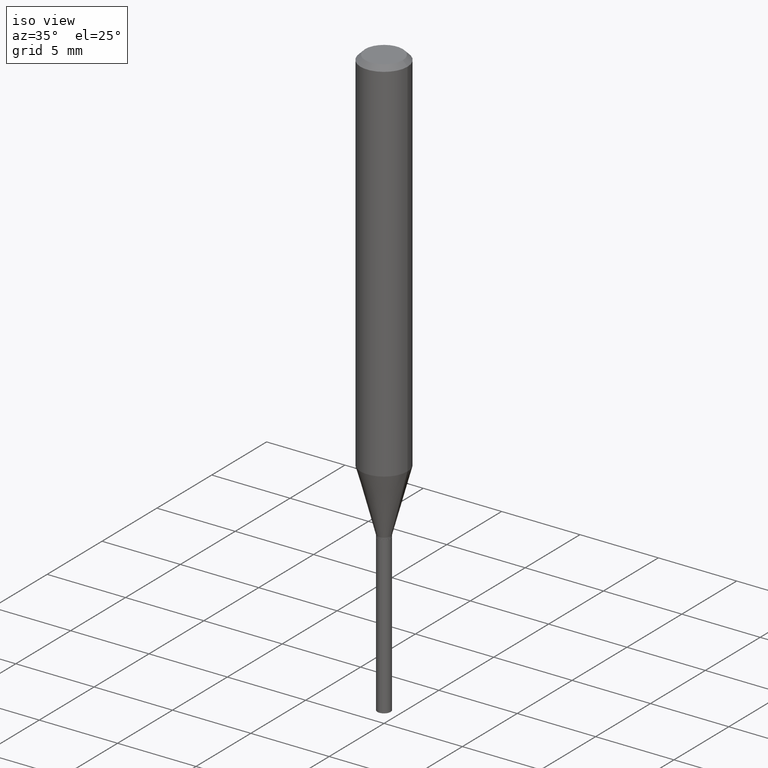
[diagram: clean part render]
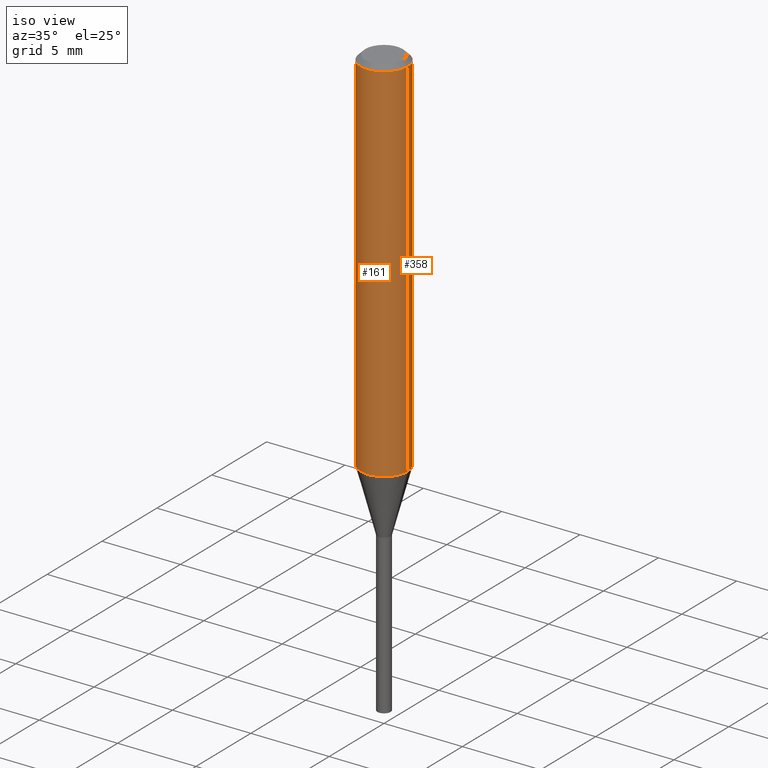
[diagram: same view with one multi-face feature highlighted, each face labeled with its STEP entity id]
A machine part, iso view. The highlighted faces form ONE feature: a constant-radius fillet chain: 2 tangent blend faces with common blend radius 1.4999 mm. The faces share edges in the B-rep.
Their STEP definitions:
[1] entity #161 (Cylinder):
#5 = CARTESIAN_POINT ( 'NONE',  ( 0.05904999999999999832, -4.535783407291118600E-16, -0.01181000000000006871 ) ) ;
#14 = DIRECTION ( 'NONE',  ( -2.445468806185136597E-29, 3.491481338843145583E-15, 1.000000000000000000 ) ) ;
#16 = VERTEX_POINT ( 'NONE', #337 ) ;
#33 = VERTEX_POINT ( 'NONE', #462 ) ;
#48 = AXIS2_PLACEMENT_3D ( 'NONE', #434, #473, #238 ) ;
#60 = ORIENTED_EDGE ( 'NONE', *, *, #97, .F. ) ;
#79 = AXIS2_PLACEMENT_3D ( 'NONE', #369, #14, #408 ) ;
#85 = CIRCLE ( 'NONE', #48, 0.05905000000000010935 ) ;
#86 = VERTEX_POINT ( 'NONE', #5 ) ;
#89 = CARTESIAN_POINT ( 'NONE',  ( -0.05905000000000005383, 4.195754854663395423E-16, -2.904631170795524694E-30 ) ) ;
#97 = EDGE_CURVE ( 'NONE', #33, #86, #254, .T. ) ;
#103 = CARTESIAN_POINT ( 'NONE',  ( 0.05905000000000005383, -4.123439461173744271E-16, 2.879382386107502672E-30 ) ) ;
#104 = DIRECTION ( 'NONE',  ( 1.000000000000000000, -6.982962677686266711E-15, 4.876176775795935793E-29 ) ) ;
#119 = ORIENTED_EDGE ( 'NONE', *, *, #344, .F. ) ;
#122 = VERTEX_POINT ( 'NONE', #371 ) ;
#152 = AXIS2_PLACEMENT_3D ( 'NONE', #211, #406, #104 ) ;
#160 = ORIENTED_EDGE ( 'NONE', *, *, #409, .T. ) ;
#161 = ADVANCED_FACE ( 'NONE', ( #276 ), #179, .T. ) ;
#172 = VECTOR ( 'NONE', #175, 39.37007874015748143 ) ;
#175 = DIRECTION ( 'NONE',  ( -2.445468806185136877E-29, 3.491481338843145188E-15, 1.000000000000000000 ) ) ;
#179 = CYLINDRICAL_SURFACE ( 'NONE', #152, 0.05905000000000005383 ) ;
#180 = VECTOR ( 'NONE', #484, 39.37007874015748143 ) ;
#211 = CARTESIAN_POINT ( 'NONE',  ( 0.000000000000000000, 0.000000000000000000, 0.000000000000000000 ) ) ;
#212 = EDGE_CURVE ( 'NONE', #122, #86, #286, .T. ) ;
#238 = DIRECTION ( 'NONE',  ( 1.000000000000000000, -6.982962677686267499E-15, 0.000000000000000000 ) ) ;
#254 = CIRCLE ( 'NONE', #79, 0.05904999999999999832 ) ;
#276 = FACE_OUTER_BOUND ( 'NONE', #362, .T. ) ;
#286 = LINE ( 'NONE', #103, #172 ) ;
#337 = CARTESIAN_POINT ( 'NONE',  ( -0.05905000000000011628, -2.830602038818014515E-15, -0.9308878406783226422 ) ) ;
#344 = EDGE_CURVE ( 'NONE', #16, #33, #356, .T. ) ;
#356 = LINE ( 'NONE', #89, #180 ) ;
#362 = EDGE_LOOP ( 'NONE', ( #119, #160, #416, #60 ) ) ;
#369 = CARTESIAN_POINT ( 'NONE',  ( 2.888098660104663328E-31, -4.123439461173779030E-17, -0.01181000000000006871 ) ) ;
#371 = CARTESIAN_POINT ( 'NONE',  ( 0.05905000000000011628, -3.662521470401729717E-15, -0.9308878406783226422 ) ) ;
#406 = DIRECTION ( 'NONE',  ( -2.445468806185136597E-29, 3.491481338843145583E-15, 1.000000000000000000 ) ) ;
#408 = DIRECTION ( 'NONE',  ( 1.000000000000000000, -6.982962677686266711E-15, 0.000000000000000000 ) ) ;
#409 = EDGE_CURVE ( 'NONE', #16, #122, #85, .T. ) ;
#416 = ORIENTED_EDGE ( 'NONE', *, *, #212, .T. ) ;
#434 = CARTESIAN_POINT ( 'NONE',  ( 2.276457176435877230E-29, -3.250177524284354797E-15, -0.9308878406783226422 ) ) ;
#462 = CARTESIAN_POINT ( 'NONE',  ( -0.05904999999999999832, -1.226130473981706178E-15, -0.01181000000000006871 ) ) ;
#473 = DIRECTION ( 'NONE',  ( -2.445468806185136597E-29, 3.491481338843145583E-15, 1.000000000000000000 ) ) ;
#484 = DIRECTION ( 'NONE',  ( -2.445468806185136877E-29, 3.491481338843145188E-15, 1.000000000000000000 ) ) ;
[2] entity #358 (Cylinder):
#5 = CARTESIAN_POINT ( 'NONE',  ( 0.05904999999999999832, -4.535783407291118600E-16, -0.01181000000000006871 ) ) ;
#16 = VERTEX_POINT ( 'NONE', #337 ) ;
#23 = FACE_OUTER_BOUND ( 'NONE', #469, .T. ) ;
#25 = CARTESIAN_POINT ( 'NONE',  ( 2.888098660104663328E-31, -4.123439461173779030E-17, -0.01181000000000006871 ) ) ;
#27 = CYLINDRICAL_SURFACE ( 'NONE', #464, 0.05905000000000005383 ) ;
#33 = VERTEX_POINT ( 'NONE', #462 ) ;
#86 = VERTEX_POINT ( 'NONE', #5 ) ;
#87 = ORIENTED_EDGE ( 'NONE', *, *, #344, .T. ) ;
#89 = CARTESIAN_POINT ( 'NONE',  ( -0.05905000000000005383, 4.195754854663395423E-16, -2.904631170795524694E-30 ) ) ;
#92 = DIRECTION ( 'NONE',  ( 1.000000000000000000, -6.982962677686266711E-15, 0.000000000000000000 ) ) ;
#103 = CARTESIAN_POINT ( 'NONE',  ( 0.05905000000000005383, -4.123439461173744271E-16, 2.879382386107502672E-30 ) ) ;
#121 = EDGE_CURVE ( 'NONE', #122, #16, #417, .T. ) ;
#122 = VERTEX_POINT ( 'NONE', #371 ) ;
#128 = DIRECTION ( 'NONE',  ( 1.000000000000000000, -6.982962677686266711E-15, 4.876176775795935793E-29 ) ) ;
#172 = VECTOR ( 'NONE', #175, 39.37007874015748143 ) ;
#175 = DIRECTION ( 'NONE',  ( -2.445468806185136877E-29, 3.491481338843145188E-15, 1.000000000000000000 ) ) ;
#180 = VECTOR ( 'NONE', #484, 39.37007874015748143 ) ;
#183 = DIRECTION ( 'NONE',  ( 1.000000000000000000, -6.982962677686267499E-15, 0.000000000000000000 ) ) ;
#212 = EDGE_CURVE ( 'NONE', #122, #86, #286, .T. ) ;
#227 = AXIS2_PLACEMENT_3D ( 'NONE', #25, #391, #92 ) ;
#270 = ORIENTED_EDGE ( 'NONE', *, *, #121, .T. ) ;
#274 = CIRCLE ( 'NONE', #227, 0.05904999999999999832 ) ;
#286 = LINE ( 'NONE', #103, #172 ) ;
#322 = CARTESIAN_POINT ( 'NONE',  ( 0.000000000000000000, 0.000000000000000000, 0.000000000000000000 ) ) ;
#331 = EDGE_CURVE ( 'NONE', #86, #33, #274, .T. ) ;
#337 = CARTESIAN_POINT ( 'NONE',  ( -0.05905000000000011628, -2.830602038818014515E-15, -0.9308878406783226422 ) ) ;
#344 = EDGE_CURVE ( 'NONE', #16, #33, #356, .T. ) ;
#350 = ORIENTED_EDGE ( 'NONE', *, *, #331, .F. ) ;
#356 = LINE ( 'NONE', #89, #180 ) ;
#358 = ADVANCED_FACE ( 'NONE', ( #23 ), #27, .T. ) ;
#371 = CARTESIAN_POINT ( 'NONE',  ( 0.05905000000000011628, -3.662521470401729717E-15, -0.9308878406783226422 ) ) ;
#391 = DIRECTION ( 'NONE',  ( -2.445468806185136597E-29, 3.491481338843145583E-15, 1.000000000000000000 ) ) ;
#400 = AXIS2_PLACEMENT_3D ( 'NONE', #460, #456, #183 ) ;
#402 = DIRECTION ( 'NONE',  ( -2.445468806185136597E-29, 3.491481338843145583E-15, 1.000000000000000000 ) ) ;
#417 = CIRCLE ( 'NONE', #400, 0.05905000000000010935 ) ;
#456 = DIRECTION ( 'NONE',  ( -2.445468806185136597E-29, 3.491481338843145583E-15, 1.000000000000000000 ) ) ;
#460 = CARTESIAN_POINT ( 'NONE',  ( 2.276457176435877230E-29, -3.250177524284354797E-15, -0.9308878406783226422 ) ) ;
#462 = CARTESIAN_POINT ( 'NONE',  ( -0.05904999999999999832, -1.226130473981706178E-15, -0.01181000000000006871 ) ) ;
#464 = AXIS2_PLACEMENT_3D ( 'NONE', #322, #402, #128 ) ;
#467 = ORIENTED_EDGE ( 'NONE', *, *, #212, .F. ) ;
#469 = EDGE_LOOP ( 'NONE', ( #270, #87, #350, #467 ) ) ;
#484 = DIRECTION ( 'NONE',  ( -2.445468806185136877E-29, 3.491481338843145188E-15, 1.000000000000000000 ) ) ;